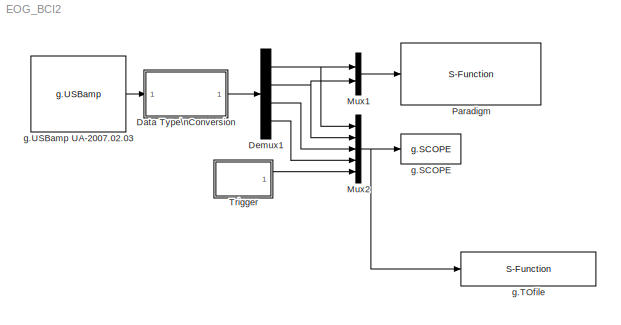
MODEL EOG_BCI2
KIND model
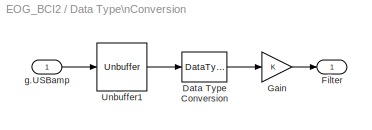
BLOCK [SubSystem] Data Type\nConversion
  FunctionWithSeparateData = off
  MaskHideContents = off
  MinAlgLoopOccurrences = off
  Opaque = off
  Ports = [1, 1]
  PropExecContextOutsideSubsystem = off
  RTWSystemCode = Auto
  RequestExecContextInheritance = off
  SID = 1
BLOCK [DataTypeConversion] Data Type\nConversion/Data Type Conversion
  OutDataTypeStr = double
  RndMeth = Floor
  SID = 3
  SaturateOnIntegerOverflow = off
BLOCK [Outport] Data Type\nConversion/Filter
  IconDisplay = Port number
  SID = 6
BLOCK [Gain] Data Type\nConversion/Gain
  SID = 4
  SampleTime = 1/256
BLOCK [Unbuffer] Data Type\nConversion/Unbuffer1
  Ports = [1, 1]
  SID = 5
BLOCK [Inport] Data Type\nConversion/g.USBamp
  IconDisplay = Port number
  Priority = 1
  SID = 2
BLOCK [Demux] Demux1
  DisplayOption = bar
  Ports = [1, 4]
  SID = 7
BLOCK [Mux] Mux1
  DisplayOption = bar
  Inputs = 2
  Ports = [2, 1]
  SID = 8
BLOCK [Mux] Mux2
  DisplayOption = bar
  Inputs = 5
  Ports = [5, 1]
  SID = 9
BLOCK [S-Function] Paradigm
  EnableBusSupport = off
  FunctionName = sfunction_EOGparadigm2
  Parameters = dofrown,doblink,dowink,dogaze,iteration
  Ports = [1]
  SID = 10
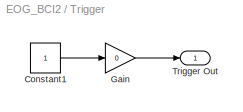
BLOCK [SubSystem] Trigger
  FunctionWithSeparateData = off
  MaskHideContents = off
  MinAlgLoopOccurrences = off
  Opaque = off
  Ports = [0, 1]
  PropExecContextOutsideSubsystem = off
  RTWSystemCode = Auto
  RequestExecContextInheritance = off
  SID = 13
BLOCK [Constant] Trigger/Constant1
  SID = 14
BLOCK [Gain] Trigger/Gain
  Gain = 0
  SID = 15
BLOCK [Outport] Trigger/Trigger Out
  IconDisplay = Port number
  SID = 16
BLOCK [Reference] g.SCOPE  REF=gtecHighspeedLib/g.SCOPE
  Ports = [1]
  SID = 41
  SourceBlock = gtecHighspeedLib/g.SCOPE
  SourceType = g.SCOPE
  sdf = off
BLOCK [S-Function] g.TOfile
  EnableBusSupport = off
  FunctionName = gTOfile
  Parameters = filename, varname, filesize, blocksize
  Ports = [1]
  SID = 42
BLOCK [Reference] g.USBamp UA-2007.02.03  REF=gUSBamplib/g.USBamp
  Ports = [2, 1]
  Priority = 2
  SID = 17
  SourceBlock = gUSBamplib/g.USBamp
  cfg = currentCFG_EOG_BCI2_UA-2007.02.03.cfg
  snr = UA-2007.02.03
LINE Data Type\nConversion/Data Type Conversion:1 -> Data Type\nConversion/Gain:1
LINE Data Type\nConversion/Gain:1 -> Data Type\nConversion/Filter:1
LINE Data Type\nConversion/Unbuffer1:1 -> Data Type\nConversion/Data Type Conversion:1
LINE Data Type\nConversion/g.USBamp:1 -> Data Type\nConversion/Unbuffer1:1
LINE Data Type\nConversion:1 -> Demux1:1
NET Demux1:1 -> Mux1:1, Mux2:1
NET Demux1:2 -> Mux1:2, Mux2:2
LINE Demux1:3 -> Mux2:3
LINE Demux1:4 -> Mux2:4
LINE Mux1:1 -> Paradigm:1
NET Mux2:1 -> g.SCOPE:1, g.TOfile:1
LINE Trigger/Constant1:1 -> Trigger/Gain:1
LINE Trigger/Gain:1 -> Trigger/Trigger Out:1
LINE Trigger:1 -> Mux2:5
LINE g.USBamp UA-2007.02.03:1 -> Data Type\nConversion:1
note: NET lines group one-source signal fan-out (src -> all destinations, sorted); 1:1 wires keep LINE
